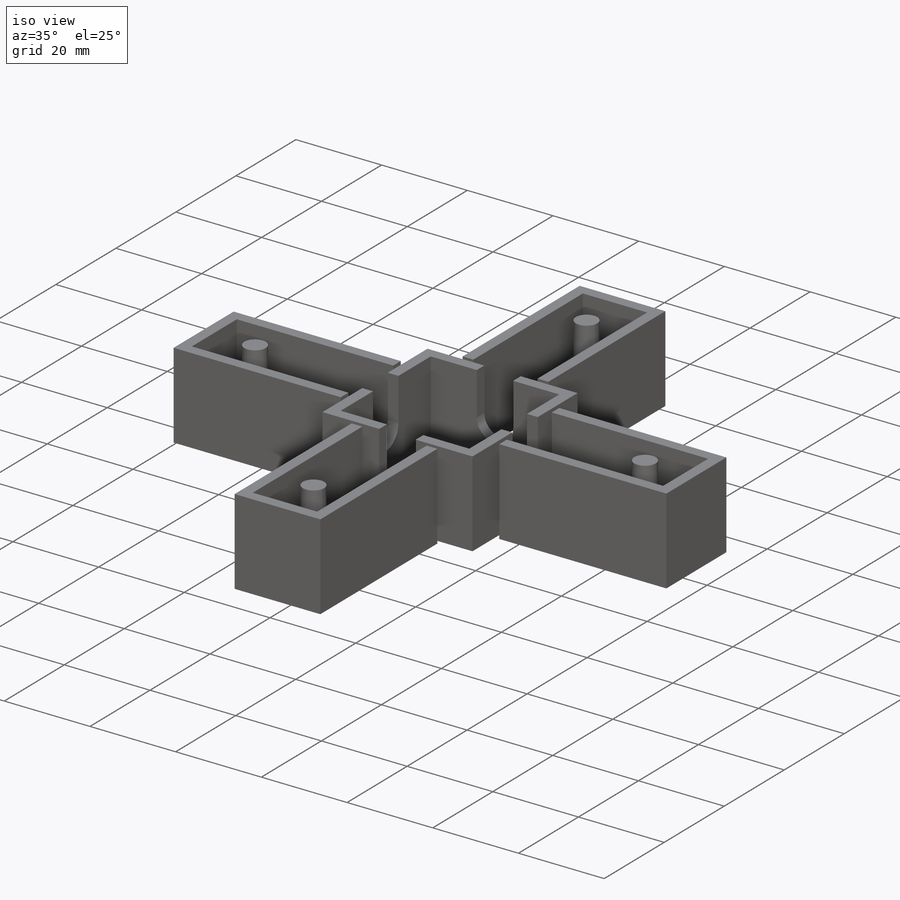
[diagram: iso view]
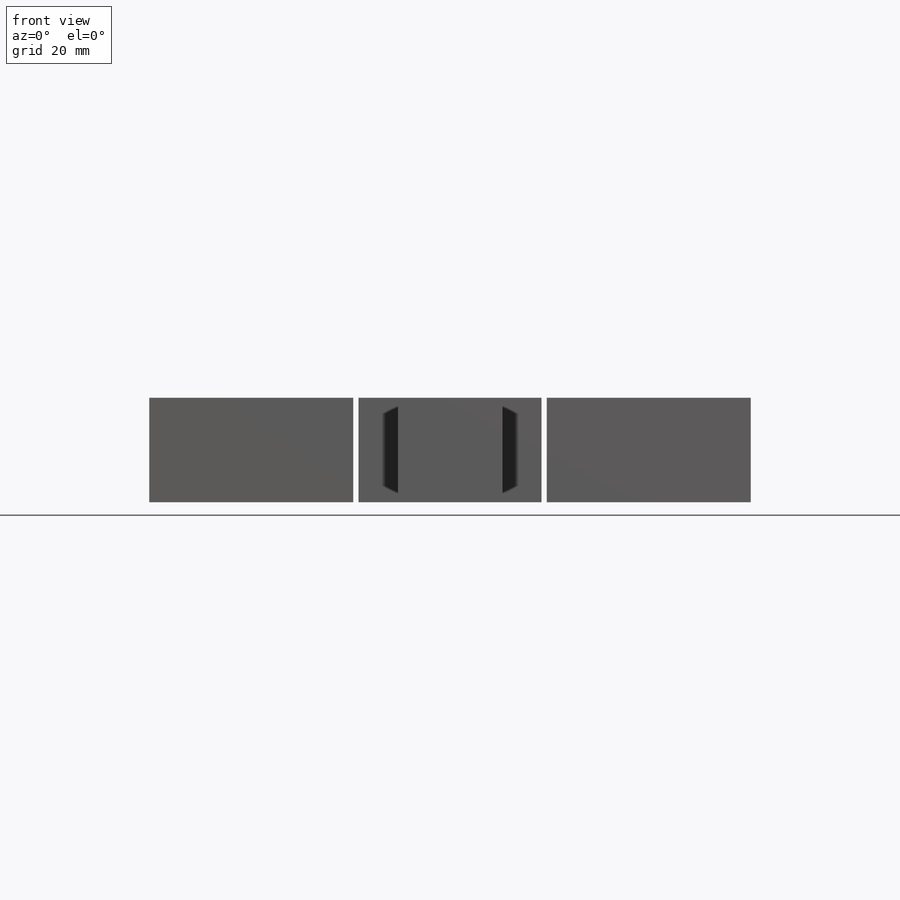
[diagram: front view]
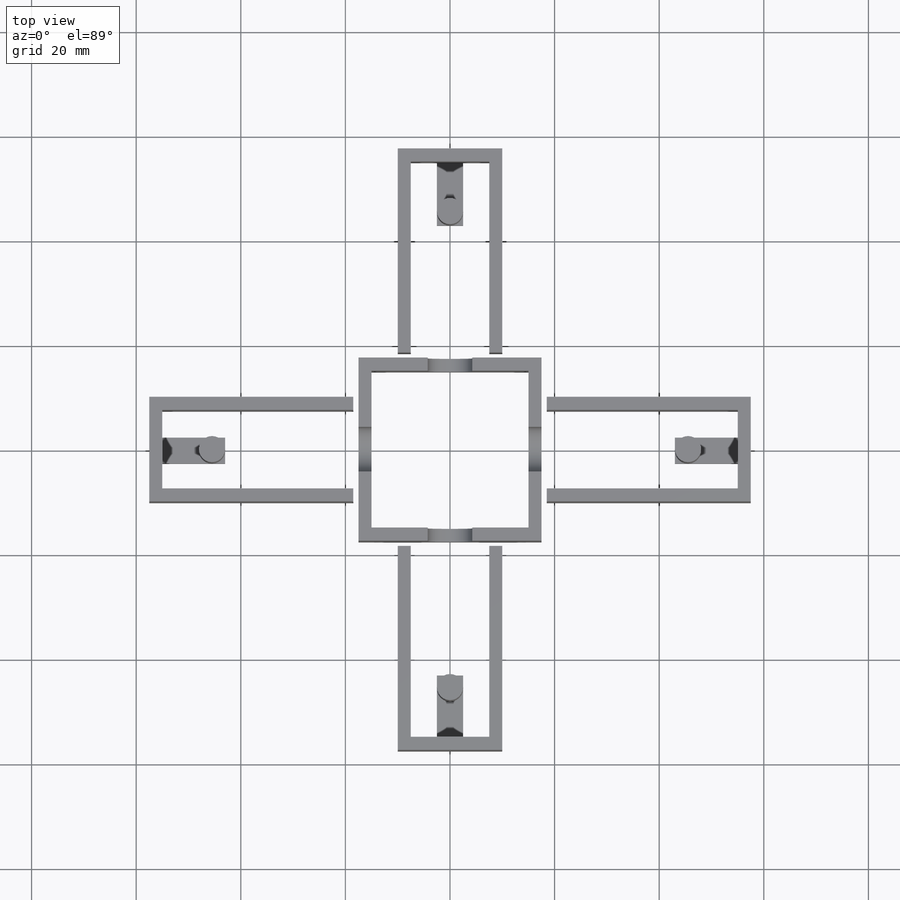
[diagram: top view]
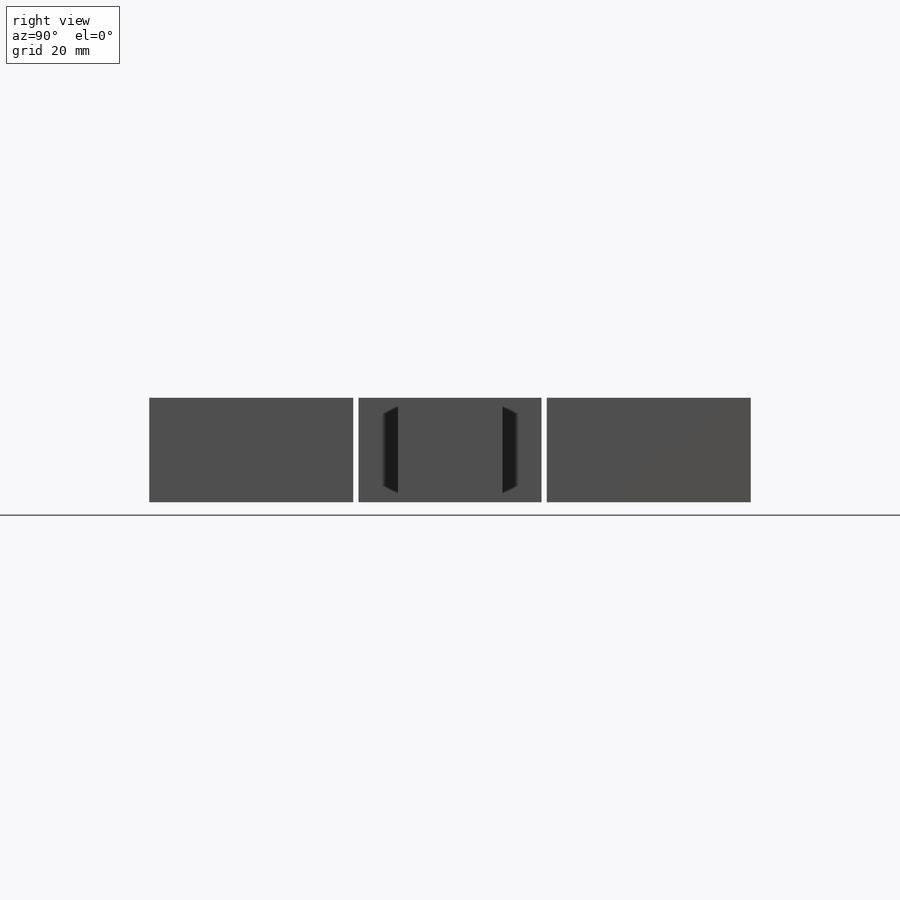
[diagram: right view]
SOLIDWORKS PART (.sldprt)
format: sldprt  version: not decoded by parser v0  size: 322,048 bytes
history: native  units: mm
features: sketch x6, extrude x4, cut_extrude x2, pattern_circular x2, material x1 (+13 scaffold rows collapsed)
feature tree (28):
  scaffold x13  (default folders/planes/origin — collapsed)
  material  "Material <not specified>"
  sketch  "Sketch1"  dims[D1=30.0mm D2=2.5mm]
  extrude  "Boss-Extrude1"  Depth=20mm
  sketch  "Sketch2"  dims[D1=4.25mm]
  cut_extrude  "Cut-Extrude1"  [1 undecoded]
  pattern_circular  "CirPattern1"  Count=4 Angle=360deg
  sketch  "Sketch5"  dims[D2=20.0mm D3=40.0mm D1=2.5mm]
  extrude  "Boss-Extrude2"  [1 undecoded]
  sketch  "Sketch6"  dims[D1=3.0mm D2=5.0mm]
  extrude  "Boss-Extrude3"  Depth=12mm
  sketch  "Sketch7"
  extrude  "Boss-Extrude4"  [1 undecoded]
  pattern_circular  "CirPattern6"  Count=4 Angle=360deg
  sketch  "Sketch8"  dims[D1=1.0mm D2=4.0]
  cut_extrude  "Cut-Extrude4"  [1 undecoded]
decode coverage: 9 of 14 modeling features carry decoded parameters
note: 4 parameter values undecoded
summary: no parameter record found for 4 features
note: suppression state not decoded; provenance and decode notes live in map.json
